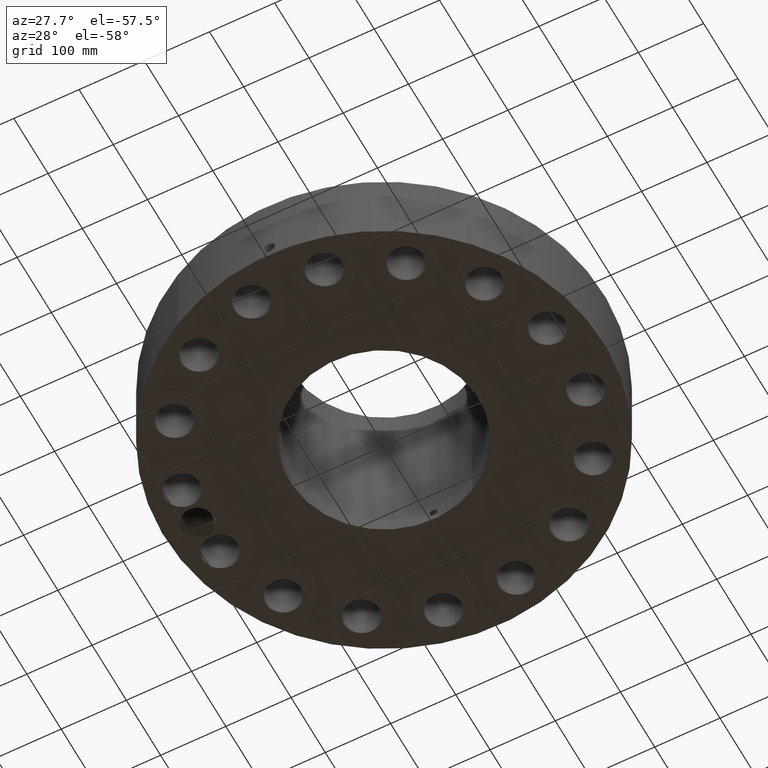
[diagram: clean part render]
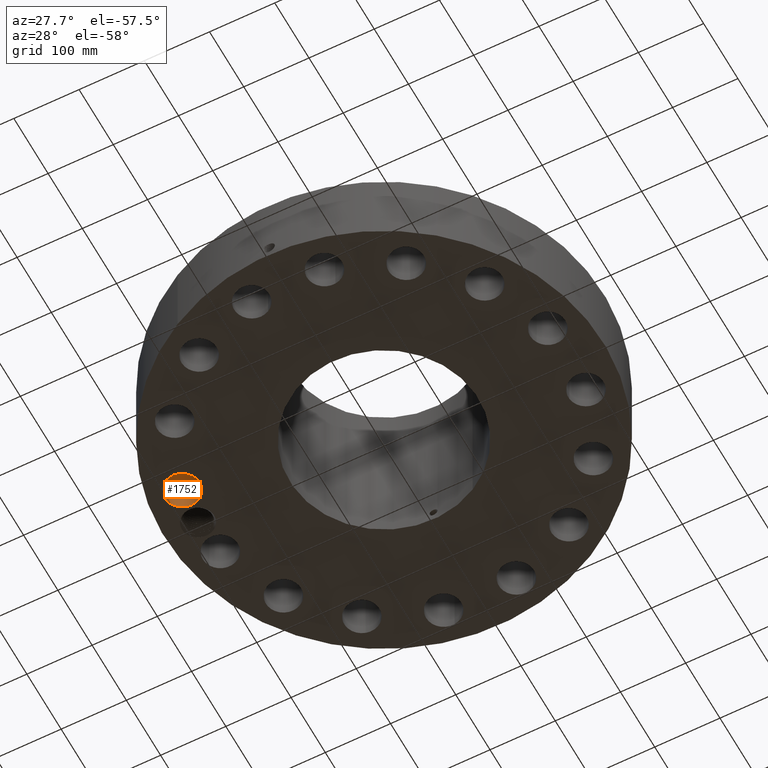
[diagram: same view with one face highlighted and labeled with its STEP entity id]
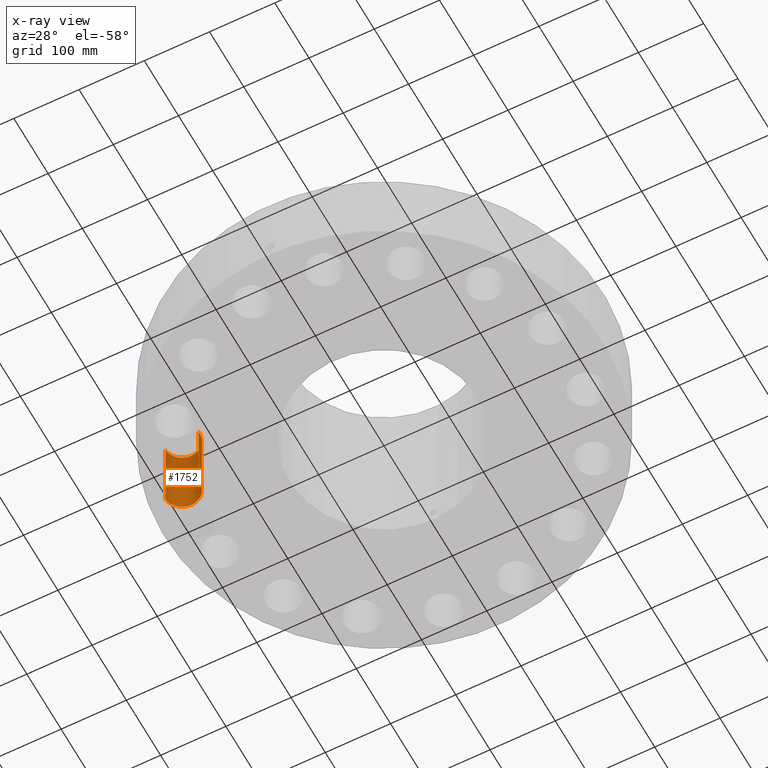
[diagram: x-ray of the same camera — body ghosted, the highlighted face saturated]
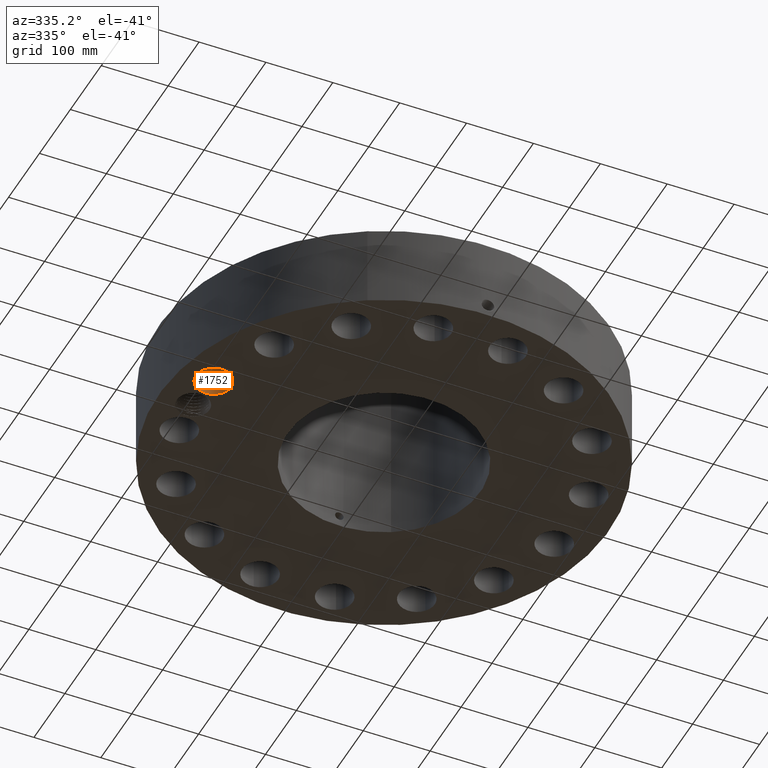
[diagram: same view with one face highlighted and labeled with its STEP entity id]
A machine part, auxiliary view. The second image highlights one B-rep face of the part: STEP entity #1752.
The next image is the same camera in x-ray: the body ghosted, the highlighted face saturated — about 27% of this face is hidden behind the body in this view.
A second angle (auxiliary view) of the same face is appended — the face is thin or edge-on in the first view.
In plain terms, the highlighted cylindrical surface (edge-blend (fillet) strip) has radius 26.924 mm, axis along (-0, 0, -1).
Its self-contained STEP definition (entity closure, byte-faithful):
#397=AXIS2_PLACEMENT_3D('Circle Axis2P3D',#395,#396,$) ;
#861=AXIS2_PLACEMENT_3D('Circle Axis2P3D',#859,#860,$) ;
#1727=AXIS2_PLACEMENT_3D('Cylinder Axis2P3D',#1724,#1725,#1726) ;
#390=CARTESIAN_POINT('Vertex',(-9.97993070022,-2.30828696633,0.250000000001)) ;
#392=CARTESIAN_POINT('Vertex',(-12.0877381089,-2.08124527905,0.250000000001)) ;
#395=CARTESIAN_POINT('Axis2P3D Location',(-11.0338344046,-2.19476612269,0.250000000001)) ;
#859=CARTESIAN_POINT('Axis2P3D Location',(-11.0338344046,-2.19476612269,5.13000000002)) ;
#863=CARTESIAN_POINT('Vertex',(-12.0877381089,-2.08124527905,5.13000000002)) ;
#865=CARTESIAN_POINT('Vertex',(-9.97993070022,-2.30828696633,5.13000000002)) ;
#1724=CARTESIAN_POINT('Axis2P3D Location',(-11.0338344046,-2.19476612269,5.12606299215)) ;
#1729=CARTESIAN_POINT('Line Origine',(-9.97993070022,-2.30828696633,2.69000000001)) ;
#1734=CARTESIAN_POINT('Line Origine',(-12.0877381089,-2.08124527905,2.69000000001)) ;
#396=DIRECTION('Axis2P3D Direction',(0.,0.,-0.0393700787402)) ;
#860=DIRECTION('Axis2P3D Direction',(0.,0.,-0.0393700787402)) ;
#1725=DIRECTION('Axis2P3D Direction',(-0.,0.,-0.0393700787402)) ;
#1726=DIRECTION('Axis2P3D XDirection',(-0.0391436526652,0.00421634391778,0.)) ;
#1730=DIRECTION('Vector Direction',(0.,0.,-0.0393700787402)) ;
#1735=DIRECTION('Vector Direction',(0.,0.,-0.0393700787402)) ;
#1731=VECTOR('Line Direction',#1730,0.0393700787402) ;
#1736=VECTOR('Line Direction',#1735,0.0393700787402) ;
#1747=ORIENTED_EDGE('',*,*,#1738,.F.) ;
#1748=ORIENTED_EDGE('',*,*,#399,.T.) ;
#1749=ORIENTED_EDGE('',*,*,#1733,.T.) ;
#1750=ORIENTED_EDGE('',*,*,#867,.F.) ;
#1752=ADVANCED_FACE('PartBody',(#1751),#1728,.F.) ;
#398=CIRCLE('generated circle',#397,1.06) ;
#862=CIRCLE('generated circle',#861,1.06) ;
#1728=CYLINDRICAL_SURFACE('generated cylinder',#1727,1.06) ;
#399=EDGE_CURVE('',#393,#391,#398,.T.) ;
#867=EDGE_CURVE('',#864,#866,#862,.T.) ;
#1733=EDGE_CURVE('',#391,#866,#1732,.F.) ;
#1738=EDGE_CURVE('',#393,#864,#1737,.F.) ;
#1746=EDGE_LOOP('',(#1747,#1748,#1749,#1750)) ;
#1751=FACE_OUTER_BOUND('',#1746,.T.) ;
#1732=LINE('Line',#1729,#1731) ;
#1737=LINE('Line',#1734,#1736) ;
#391=VERTEX_POINT('',#390) ;
#393=VERTEX_POINT('',#392) ;
#864=VERTEX_POINT('',#863) ;
#866=VERTEX_POINT('',#865) ;